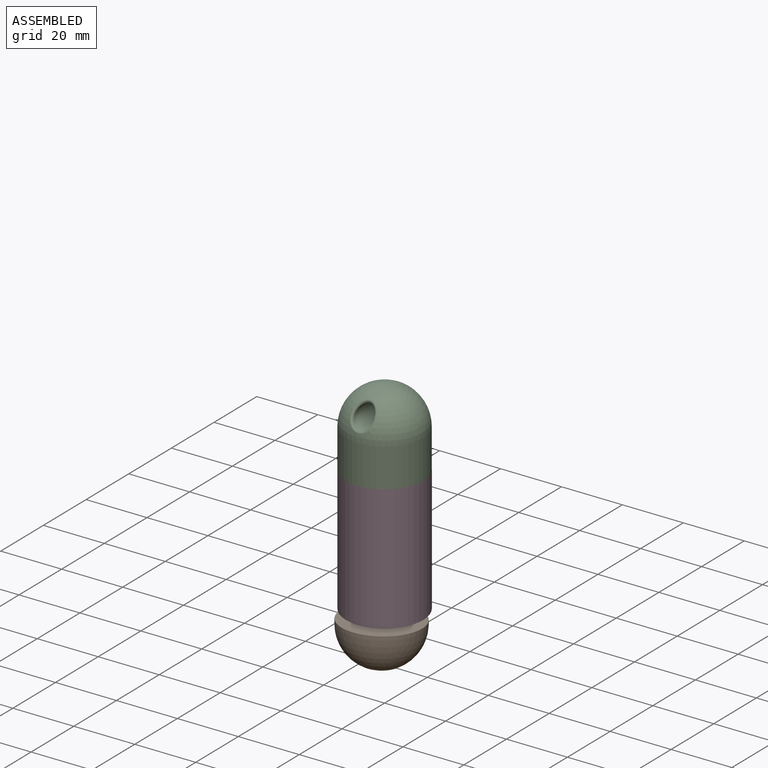
[diagram: assembled view]
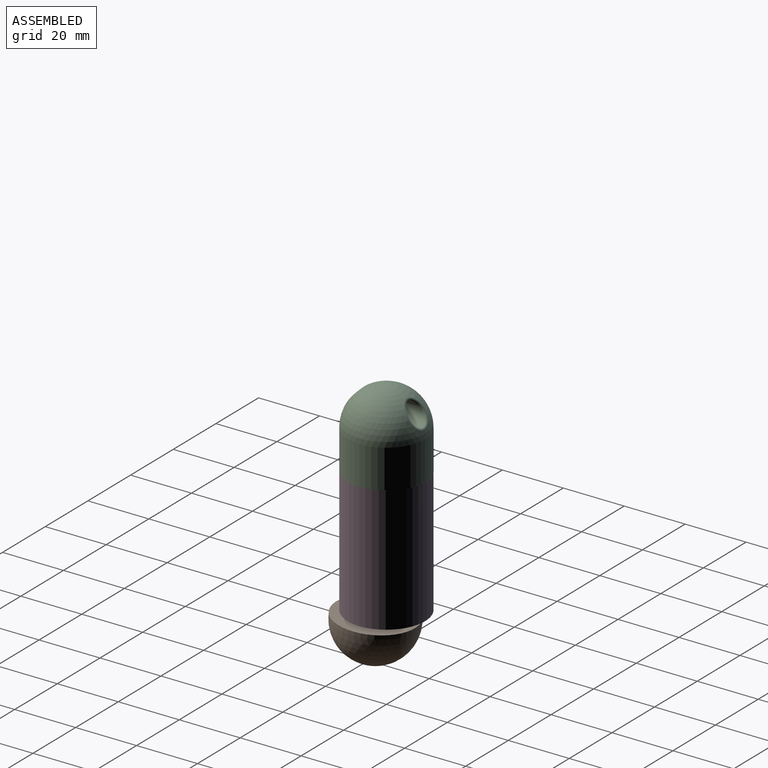
[diagram: assembled view, second angle]
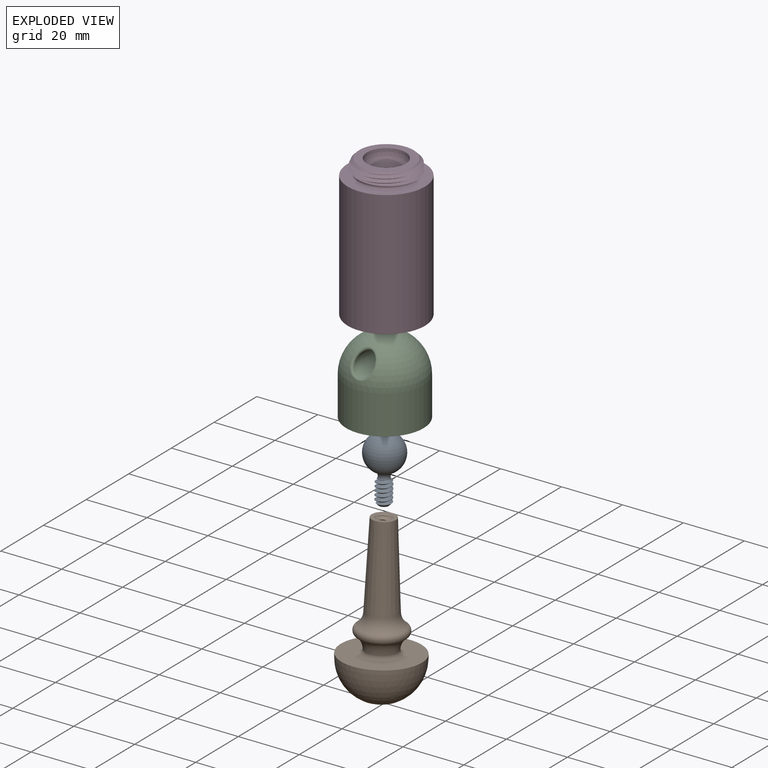
[diagram: exploded view]
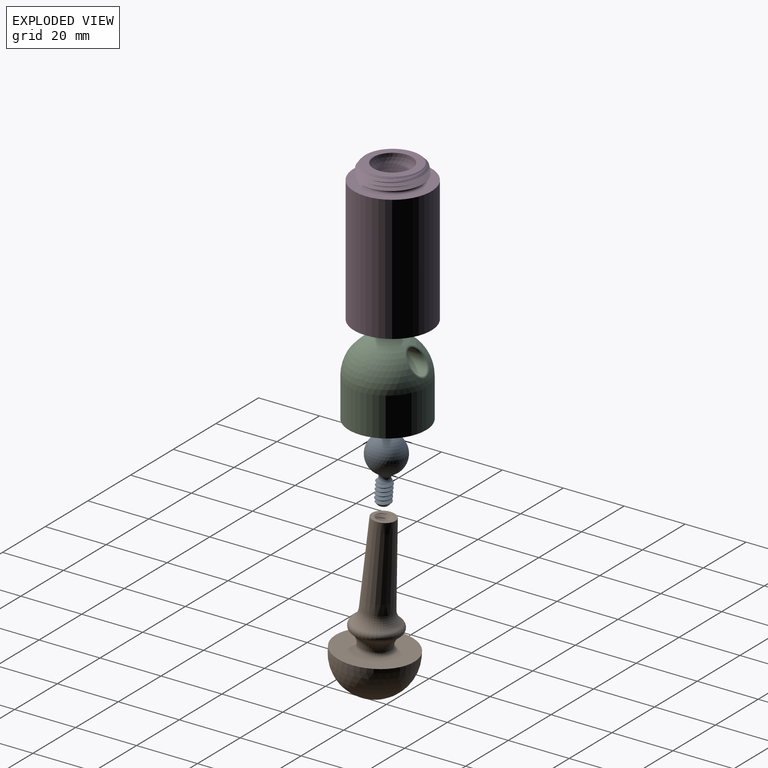
[diagram: exploded view, second angle]
ASSEMBLY  parts=4 mates=5
PART A: 11 faces, bbox 12.3x12.3x21.5 mm
  f0: cylinder r=2.54mm len=6.14mm, axis (0,0,-1), area 9.4mm2, adj f1,f4,f5,f6,f9
  f1: cone r=1.52mm half-angle=45deg, axis (0,0,1), area 12mm2, adj f0,f2,f5,f9,f10
  f2: plane 3.05x3.05mm, normal (0,0,-1), area 7.3mm2, adj f1
  f3: sphere r=6.1mm, area 445.7mm2, adj f4
  f4: torus R=3.12mm, axis (0,0,-1), area 32.9mm2, adj f0,f3,f5,f6,f7,f8
  f5: bspline ~7.77x5.87mm, area 78.7mm2, adj f0,f1,f4,f6,f8,f10
  f6: bspline ~7.77x5.87mm, area 77.1mm2, adj f0,f4,f5,f7,f9
  f7: plane 1.21x0.37mm, normal (0.5,0,-0.87), area 0.2mm2, adj f4,f6,f8
  f8: plane 1.22x0.86mm, normal (0.5,0,0.87), area 0.6mm2, adj f4,f5,f7
  f9: plane 1.78x1.32mm, normal (-0.33,0.38,-0.87), area 1.3mm2, adj f0,f1,f6,f10
  f10: plane 1.44x1.07mm, normal (-0.33,0.38,0.87), area 0.4mm2, adj f1,f5,f9
PART B: 16 faces, bbox 25.4x25.4x54 mm
  f0: plane 1.02x1.02mm, normal (0,0,1), area 0.8mm2, adj f11
  f1: cylinder r=2.54mm len=5.08mm, axis (0,0,1), area 1.3mm2, adj f2,f10,f12,f13
  f2: plane 7.62x7.62mm, normal (0,0,1), area 25.3mm2, adj f1,f7,f14
  f3: torus R=6.35mm, axis (0,0,1), area 148.3mm2, adj f8,f9
  f4: plane 25.4x25.4mm, normal (0,0,1), area 380mm2, adj f5,f15
  f5: cylinder r=12.7mm len=25.4mm, axis (0,0,1), area 101.3mm2, adj f4,f6
  f6: sphere r=12.7mm, area 1013.4mm2, adj f5
  f7: cone r=3.81mm half-angle=2.6deg, axis (0,0,-1), area 765.3mm2, adj f2,f8
  f8: torus R=10.13mm, axis (0,0,1), area 172.1mm2, adj f3,f7
  f9: torus R=10.16mm, axis (0,0,1), area 175.9mm2, adj f3,f15
  f10: cone r=0.51mm half-angle=45deg, axis (0,0,1), area 2.8mm2, adj f1,f11,f12,f13
  f11: cone r=0.51mm half-angle=45deg, axis (0,0,1), area 14.5mm2, adj f0,f10,f12
  f12: bspline ~6.76x5.87mm, area 53.5mm2, adj f1,f10,f11,f13,f14
  f13: bspline ~5.87x5.7mm, area 53.6mm2, adj f1,f10,f12,f14
  f14: cone r=0mm half-angle=45deg, axis (0,0,1), area 10.2mm2, adj f2,f12,f13
  f15: torus R=6.35mm, axis (0,0,1), area 70.3mm2, adj f4,f9
PART C: 14 faces, bbox 25.4x25.4x25.4 mm
  f0: cylinder r=10.16mm len=20.32mm, axis (0,0,-1), area 3.3mm2, adj f3,f4,f5,f6
  f1: plane 17.78x17.78mm, normal (0,0,-1), area 121.6mm2, adj f2,f3
  f2: sphere r=6.35mm, area 253.4mm2, adj f1
  f3: cone r=8.89mm half-angle=45deg, axis (0,0,-1), area 61.5mm2, adj f0,f1,f4,f5
  f4: bspline ~23.46x20.32mm, area 150.4mm2, adj f0,f3,f5,f6,f7
  f5: bspline ~23.46x20.32mm, area 150.4mm2, adj f0,f3,f4,f6,f7
  f6: cone r=12.7mm half-angle=45deg, axis (0,0,-1), area 157.2mm2, adj f0,f4,f5,f7,f10
  f7: cone r=12.7mm half-angle=45deg, axis (0,0,-1), area 10.7mm2, adj f4,f5,f6
  f8: sphere r=12.7mm, area 887mm2, adj f9,f12,f13
  f9: cylinder r=12.7mm len=25.4mm, axis (0,0,-1), area 1013.4mm2, adj f8,f10
  f10: plane 25.4x25.4mm, normal (0,0,-1), area 96.3mm2, adj f6,f9
  f11: cylinder r=3.17mm len=23.59mm, axis (0,-1,0), area 371.9mm2, adj f12,f13
  f12: bspline ~8.04x8.03mm, area 30.3mm2, adj f8,f11
  f13: bspline ~8.03x8.03mm, area 30.2mm2, adj f8,f11
PART D: 16 faces, bbox 25.7x25.7x47.3 mm
  f0: plane 0.04x0.01mm, normal (0,1,0), area 0mm2, adj f1,f3,f15
  f1: bspline ~23.41x20.28mm, area 188.5mm2, adj f0,f2,f11,f12,f14,f15
  f2: bspline ~23.41x20.28mm, area 187.8mm2, adj f1,f3,f11,f14,f15
  f3: bspline ~8.8x5.09mm, area 0mm2, adj f0,f2,f15
  f4: sphere r=6.35mm, area 191.6mm2, adj f5,f13
  f5: plane 17.78x17.78mm, normal (0,0,1), area 121.6mm2, adj f4,f12
  f6: plane 25.4x25.4mm, normal (0,0,1), area 221.7mm2, adj f7,f14
  f7: cylinder r=12.7mm len=41.28mm, axis (0,0,1), area 3293.6mm2, adj f6,f8
  f8: plane 25.4x25.4mm, normal (0,0,-1), area 96.3mm2, adj f7,f9
  f9: cylinder r=11.43mm len=38.1mm, axis (0,0,1), area 2736.2mm2, adj f8,f10
  f10: cone r=3.43mm half-angle=70deg, axis (0,0,-1), area 374.6mm2, adj f9,f13
  f11: cone r=8.89mm half-angle=45deg, axis (0,0,-1), area 12.7mm2, adj f1,f2,f12
  f12: cone r=8.89mm half-angle=45deg, axis (0,0,-1), area 45mm2, adj f1,f5,f11
  f13: torus R=4.49mm, axis (0,0,1), area 27mm2, adj f4,f10
  f14: torus R=9.53mm, axis (0,0,-1), area 108.1mm2, adj f1,f2,f6,f15
  f15: plane 19.53x12.71mm, normal (0,0,-1), area 10.5mm2, adj f0,f1,f2,f3,f14
PLACE A rot(axis=(-0.08,-0.06,-0.99),35.4deg) t=(0,0,27.31)mm
PLACE B rot(axis=(-0.08,-0.06,-0.99),35.4deg) t=(1.27,-3.6,-34.81)mm
PLACE C rot(axis=(0,0,1),180deg) t=(0,0,22.22)mm
PLACE D rot(axis=(0,0,1),0deg) t=(0,0,-19.05)mm
MATE cylindrical C.f0 <-> D.f7  axis (0,0,-1) through (0,0,28.57)mm
MATE ball C.f0 <-> A.f0  axis (0,0,1) through (0,0,27.3)mm
MATE fastened C.f0 <-> D.f7  axis (0,0,-1) through (0,0,22.22)mm
MATE fastened A.f0 <-> B.f1  axis (0.02,-0.06,-1) through (0.31,-0.88,12.09)mm
MATE cylindrical A.f0 <-> B.f1  axis (0.02,-0.06,-1) through (0.14,-0.39,20.51)mm
